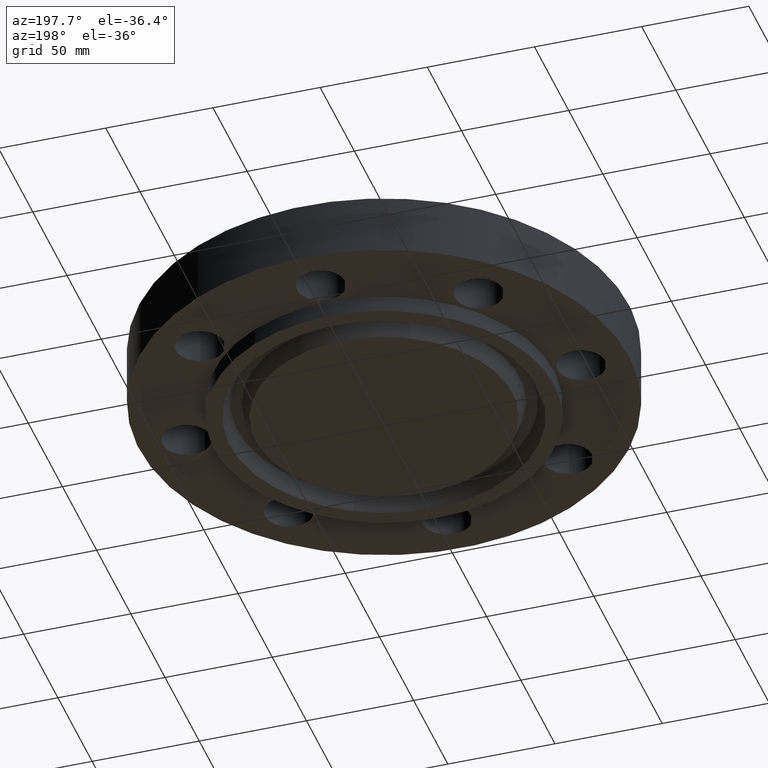
[diagram: clean part render]
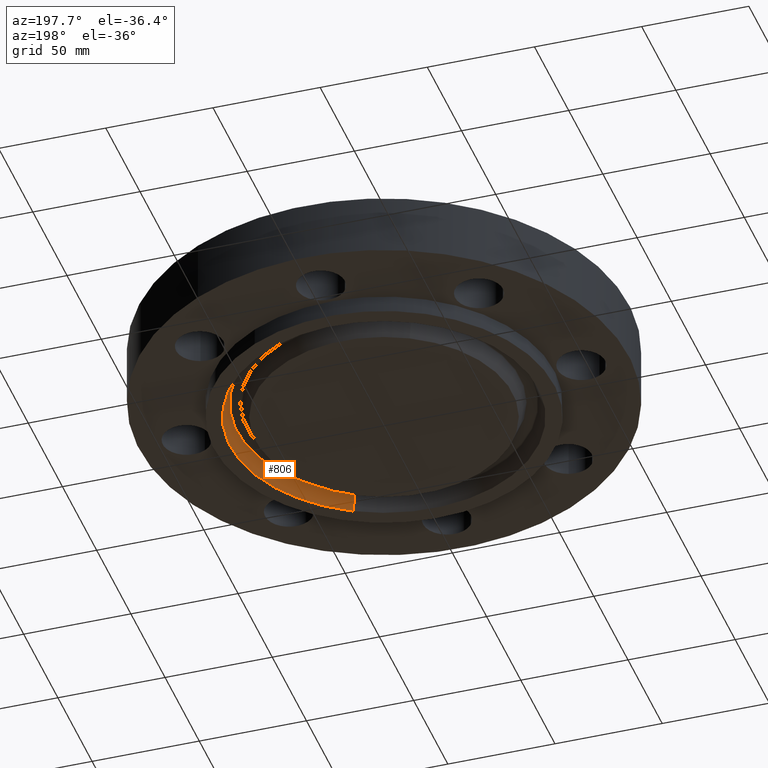
[diagram: same view with one face highlighted and labeled with its STEP entity id]
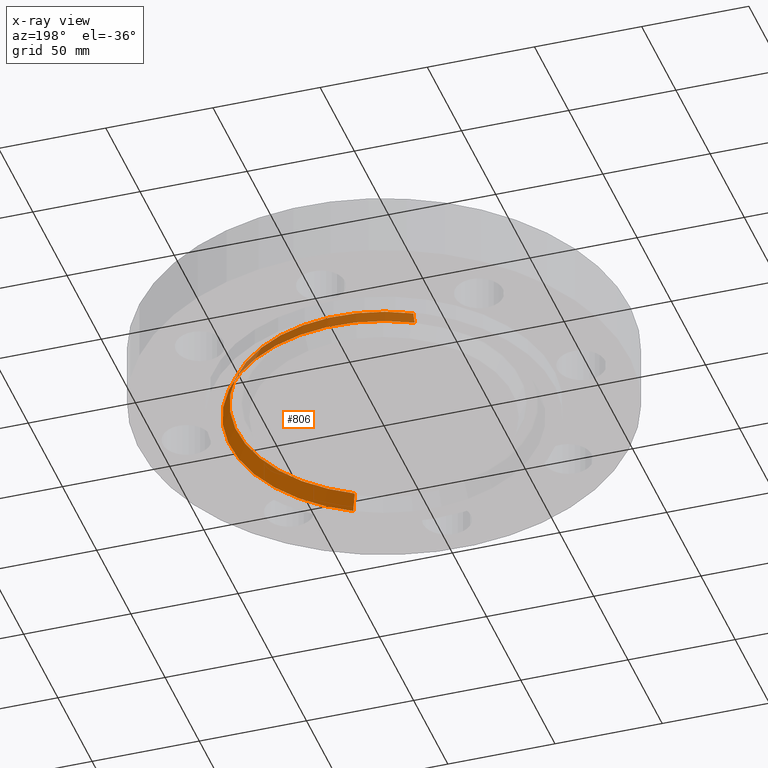
[diagram: x-ray of the same camera — body ghosted, the highlighted face saturated]
A machine part, auxiliary view. The second image highlights one B-rep face of the part: STEP entity #806.
The next image is the same camera in x-ray: the body ghosted, the highlighted face saturated — about 0% of this face is hidden behind the body in this view.
In plain terms, the highlighted conical surface has half-angle 23 deg.
Its self-contained STEP definition (entity closure, byte-faithful):
#88=AXIS2_PLACEMENT_3D('Circle Axis2P3D',#86,#87,$) ;
#741=AXIS2_PLACEMENT_3D('Cone Axis2P3D',#738,#739,#740) ;
#762=AXIS2_PLACEMENT_3D('Circle Axis2P3D',#760,#761,$) ;
#81=CARTESIAN_POINT('Vertex',(1.35588733701,-2.48193512242,-0.312500000001)) ;
#83=CARTESIAN_POINT('Vertex',(-1.35588733701,2.48193512242,-0.312500000001)) ;
#86=CARTESIAN_POINT('Axis2P3D Location',(3.49676543189E-016,8.39223703654E-016,-0.312500000001)) ;
#707=CARTESIAN_POINT('Vertex',(-1.29617316206,2.37262905836,-0.0190701156784)) ;
#709=CARTESIAN_POINT('Vertex',(1.29617316206,-2.37262905836,-0.0190701156784)) ;
#738=CARTESIAN_POINT('Axis2P3D Location',(0.,0.,-0.0190701156784)) ;
#743=CARTESIAN_POINT('Line Origine',(-1.32603024953,2.42728209039,-0.16578505784)) ;
#748=CARTESIAN_POINT('Line Origine',(1.32603024953,-2.42728209039,-0.16578505784)) ;
#760=CARTESIAN_POINT('Axis2P3D Location',(0.,0.,-0.0190701156784)) ;
#87=DIRECTION('Axis2P3D Direction',(0.,0.,-0.0393700787402)) ;
#739=DIRECTION('Axis2P3D Direction',(-0.,-0.,-0.0393700787402)) ;
#740=DIRECTION('Axis2P3D XDirection',(-0.0188750212049,0.0345504945626,0.)) ;
#744=DIRECTION('Vector Direction',(-0.00737505833565,0.0134999537303,-0.0362403485611)) ;
#749=DIRECTION('Vector Direction',(0.00737505833565,-0.0134999537303,-0.0362403485611)) ;
#761=DIRECTION('Axis2P3D Direction',(0.,0.,0.0393700787402)) ;
#745=VECTOR('Line Direction',#744,0.0393700787402) ;
#750=VECTOR('Line Direction',#749,0.0393700787402) ;
#801=ORIENTED_EDGE('',*,*,#90,.T.) ;
#802=ORIENTED_EDGE('',*,*,#752,.T.) ;
#803=ORIENTED_EDGE('',*,*,#764,.T.) ;
#804=ORIENTED_EDGE('',*,*,#747,.F.) ;
#806=ADVANCED_FACE('PartBody',(#805),#742,.F.) ;
#89=CIRCLE('generated circle',#88,2.82815000001) ;
#763=CIRCLE('generated circle',#762,2.70359640379) ;
#742=CONICAL_SURFACE('Cone',#741,2.70359640379,0.401425727959) ;
#90=EDGE_CURVE('',#84,#82,#89,.T.) ;
#747=EDGE_CURVE('',#84,#708,#746,.F.) ;
#752=EDGE_CURVE('',#82,#710,#751,.F.) ;
#764=EDGE_CURVE('',#710,#708,#763,.T.) ;
#800=EDGE_LOOP('',(#801,#802,#803,#804)) ;
#805=FACE_OUTER_BOUND('',#800,.T.) ;
#746=LINE('Line',#743,#745) ;
#751=LINE('Line',#748,#750) ;
#82=VERTEX_POINT('',#81) ;
#84=VERTEX_POINT('',#83) ;
#708=VERTEX_POINT('',#707) ;
#710=VERTEX_POINT('',#709) ;